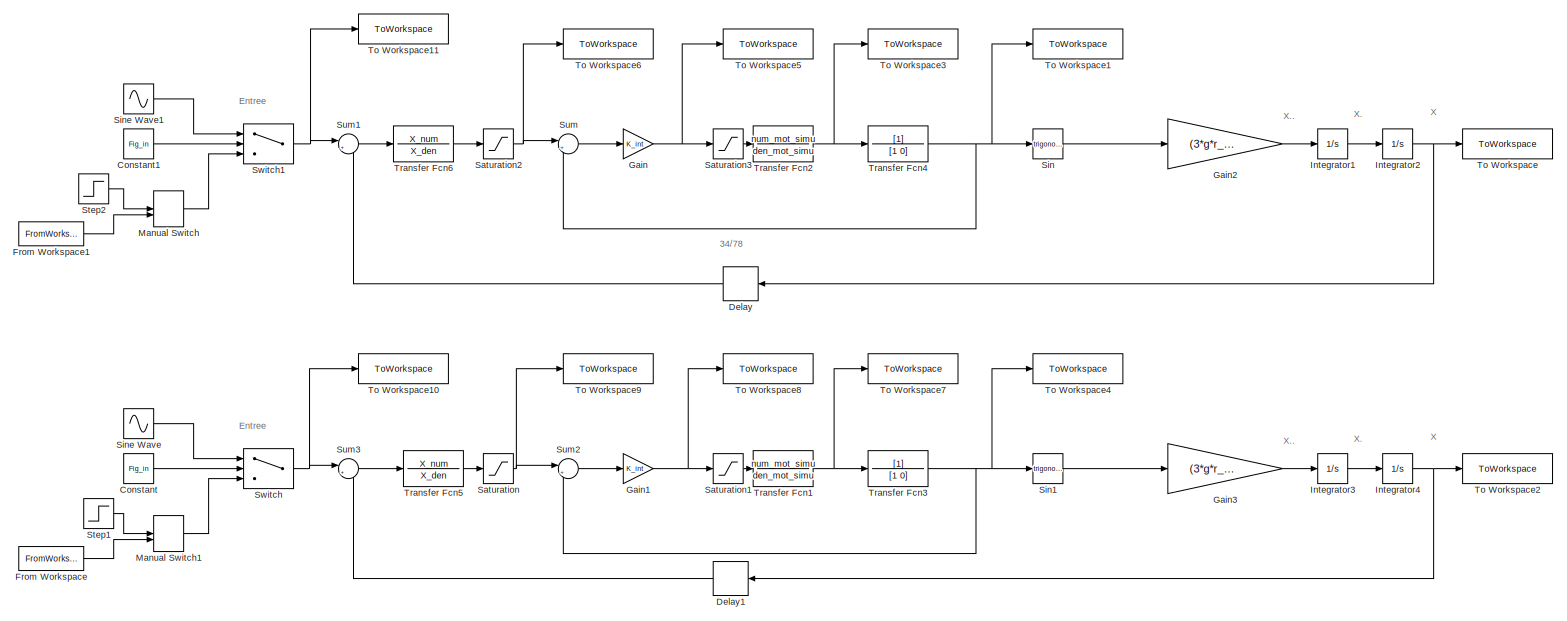
[diagram: root canvas - part 1/1, most of the canvas]
MODEL slx_c8e2f2d5c447
KIND model
CONFIG AbsTol = auto
CONFIG EnableMultiTasking = off
CONFIG FixedStep = 0.01
CONFIG MaxStep = auto
CONFIG MinStep = auto
CONFIG RelTol = 1e-3
CONFIG SampleTimeConstraint = Unconstrained
CONFIG SolverName = FixedStepAuto
CONFIG StartTime = 0.0
CONFIG StopTime = 30
BLOCK [Constant] Constant
  Value = Fig_in
BLOCK [Constant] Constant1
  Value = Fig_in
BLOCK [Delay] Delay
  DelayLength = delay
  InputPortMap = u0
  NameLocation = top
BLOCK [Delay] Delay1
  DelayLength = delay
  InputPortMap = u0
  NameLocation = top
BLOCK [FromWorkspace] From Workspace
  SampleTime = step_size
  VariableName = Hy
BLOCK [FromWorkspace] From Workspace1
  SampleTime = step_size
  VariableName = Hx
BLOCK [Gain] Gain
  Gain = K_int
BLOCK [Gain] Gain1
  Gain = K_int
BLOCK [Gain] Gain2
  Gain = (3*g*r_arm)/(5*L_plaque)
BLOCK [Gain] Gain3
  Gain = (3*g*r_arm)/(5*L_plaque)
BLOCK [Integrator] Integrator1
BLOCK [Integrator] Integrator2
BLOCK [Integrator] Integrator3
BLOCK [Integrator] Integrator4
BLOCK [ManualSwitch] Manual Switch
  CurrentSetting = 0
BLOCK [ManualSwitch] Manual Switch1
  CurrentSetting = 0
BLOCK [Saturate] Saturation
  LowerLimit = deg2rad(-35)
  UpperLimit = deg2rad(35)
BLOCK [Saturate] Saturation1
  LowerLimit = -7.5
  UpperLimit = 7.5
BLOCK [Saturate] Saturation2
  LowerLimit = deg2rad(-35)
  UpperLimit = deg2rad(35)
BLOCK [Saturate] Saturation3
  LowerLimit = -7.5
  UpperLimit = 7.5
BLOCK [Trigonometry] Sin
BLOCK [Trigonometry] Sin1
BLOCK [Sin] Sine Wave
  Amplitude = Test_Position
  Frequency = Frequence
  SampleTime = 0
BLOCK [Sin] Sine Wave1
  Amplitude = Test_Position
  Frequency = Frequence
  SampleTime = 0
BLOCK [Step] Step1
  After = Test_Position
  SampleTime = 0
BLOCK [Step] Step2
  After = Test_Position
  SampleTime = 0
BLOCK [Sum] Sum
  Inputs = |+-
BLOCK [Sum] Sum1
  Inputs = |+-
BLOCK [Sum] Sum2
  Inputs = |+-
BLOCK [Sum] Sum3
  Inputs = |+-
BLOCK [Switch] Switch
  Criteria = u2 > Threshold
  InputSameDT = off
  SaturateOnIntegerOverflow = off
BLOCK [Switch] Switch1
  Criteria = u2 > Threshold
  InputSameDT = off
  SaturateOnIntegerOverflow = off
BLOCK [ToWorkspace] To Workspace
  FixptAsFi = on
  MaxDataPoints = inf
  SampleTime = -1
  VariableName = X
BLOCK [ToWorkspace] To Workspace1
  FixptAsFi = on
  MaxDataPoints = inf
  SampleTime = -1
  Save2DSignal = 2-D array (concatenate along first dimension)
  SaveFormat = Timeseries
  VariableName = Theta_C_X
BLOCK [ToWorkspace] To Workspace10
  FixptAsFi = on
  MaxDataPoints = inf
  SampleTime = -1
  Save2DSignal = 2-D array (concatenate along first dimension)
  SaveFormat = Timeseries
  VariableName = Entree_Y
BLOCK [ToWorkspace] To Workspace11
  FixptAsFi = on
  MaxDataPoints = inf
  SampleTime = -1
  Save2DSignal = 2-D array (concatenate along first dimension)
  SaveFormat = Timeseries
  VariableName = Entree_X
BLOCK [ToWorkspace] To Workspace2
  FixptAsFi = on
  MaxDataPoints = inf
  SampleTime = -1
  VariableName = Y
BLOCK [ToWorkspace] To Workspace3
  FixptAsFi = on
  MaxDataPoints = inf
  SampleTime = -1
  VariableName = Omega_C_X
BLOCK [ToWorkspace] To Workspace4
  FixptAsFi = on
  MaxDataPoints = inf
  SampleTime = -1
  Save2DSignal = 2-D array (concatenate along first dimension)
  SaveFormat = Timeseries
  VariableName = Theta_C_Y
BLOCK [ToWorkspace] To Workspace5
  FixptAsFi = on
  MaxDataPoints = inf
  SampleTime = -1
  Save2DSignal = 2-D array (concatenate along first dimension)
  SaveFormat = Timeseries
  VariableName = Vm_out_X
BLOCK [ToWorkspace] To Workspace6
  FixptAsFi = on
  MaxDataPoints = inf
  SampleTime = -1
  Save2DSignal = 2-D array (concatenate along first dimension)
  SaveFormat = Timeseries
  VariableName = Theta_Cd_X
BLOCK [ToWorkspace] To Workspace7
  FixptAsFi = on
  MaxDataPoints = inf
  SampleTime = -1
  VariableName = Omega_C_Y
BLOCK [ToWorkspace] To Workspace8
  FixptAsFi = on
  MaxDataPoints = inf
  SampleTime = -1
  Save2DSignal = 2-D array (concatenate along first dimension)
  SaveFormat = Timeseries
  VariableName = Vm_out_Y
BLOCK [ToWorkspace] To Workspace9
  FixptAsFi = on
  MaxDataPoints = inf
  SampleTime = -1
  Save2DSignal = 2-D array (concatenate along first dimension)
  SaveFormat = Timeseries
  VariableName = Theta_Cd_Y
BLOCK [TransferFcn] Transfer Fcn1
  Denominator = den_mot_simu
  Numerator = num_mot_simu
BLOCK [TransferFcn] Transfer Fcn2
  Denominator = den_mot_simu
  Numerator = num_mot_simu
BLOCK [TransferFcn] Transfer Fcn3
  Denominator = [1 0]
BLOCK [TransferFcn] Transfer Fcn4
  Denominator = [1 0]
BLOCK [TransferFcn] Transfer Fcn5
  Denominator = X_den
  Numerator = X_num
BLOCK [TransferFcn] Transfer Fcn6
  Denominator = X_den
  Numerator = X_num
ANNOTATION (root): 34/78
ANNOTATION (root): Entree
ANNOTATION (root): X
ANNOTATION (root): X.
ANNOTATION (root): X..
LINE Constant1:1 -> Switch1:2
LINE Constant:1 -> Switch:2
LINE Delay1:1 -> Sum3:2
LINE Delay:1 -> Sum1:2
LINE From Workspace1:1 -> Manual Switch:2
LINE From Workspace:1 -> Manual Switch1:2
NET Gain1:1 -> Saturation1:1, To Workspace8:1
LINE Gain2:1 -> Integrator1:1
LINE Gain3:1 -> Integrator3:1
NET Gain:1 -> Saturation3:1, To Workspace5:1
LINE Integrator1:1 -> Integrator2:1
NET Integrator2:1 -> Delay:1, To Workspace:1
LINE Integrator3:1 -> Integrator4:1
NET Integrator4:1 -> Delay1:1, To Workspace2:1
LINE Manual Switch1:1 -> Switch:3
LINE Manual Switch:1 -> Switch1:3
LINE Saturation1:1 -> Transfer Fcn1:1
NET Saturation2:1 -> Sum:1, To Workspace6:1
LINE Saturation3:1 -> Transfer Fcn2:1
NET Saturation:1 -> Sum2:1, To Workspace9:1
LINE Sin1:1 -> Gain3:1
LINE Sin:1 -> Gain2:1
LINE Sine Wave1:1 -> Switch1:1
LINE Sine Wave:1 -> Switch:1
LINE Step1:1 -> Manual Switch1:1
LINE Step2:1 -> Manual Switch:1
LINE Sum1:1 -> Transfer Fcn6:1
LINE Sum2:1 -> Gain1:1
LINE Sum3:1 -> Transfer Fcn5:1
LINE Sum:1 -> Gain:1
NET Switch1:1 -> Sum1:1, To Workspace11:1
NET Switch:1 -> Sum3:1, To Workspace10:1
NET Transfer Fcn1:1 -> To Workspace7:1, Transfer Fcn3:1
NET Transfer Fcn2:1 -> To Workspace3:1, Transfer Fcn4:1
NET Transfer Fcn3:1 -> Sin1:1, Sum2:2, To Workspace4:1
NET Transfer Fcn4:1 -> Sin:1, Sum:2, To Workspace1:1
LINE Transfer Fcn5:1 -> Saturation:1
LINE Transfer Fcn6:1 -> Saturation2:1
note: NET lines group one-source signal fan-out (src -> all destinations, sorted); 1:1 wires keep LINE
